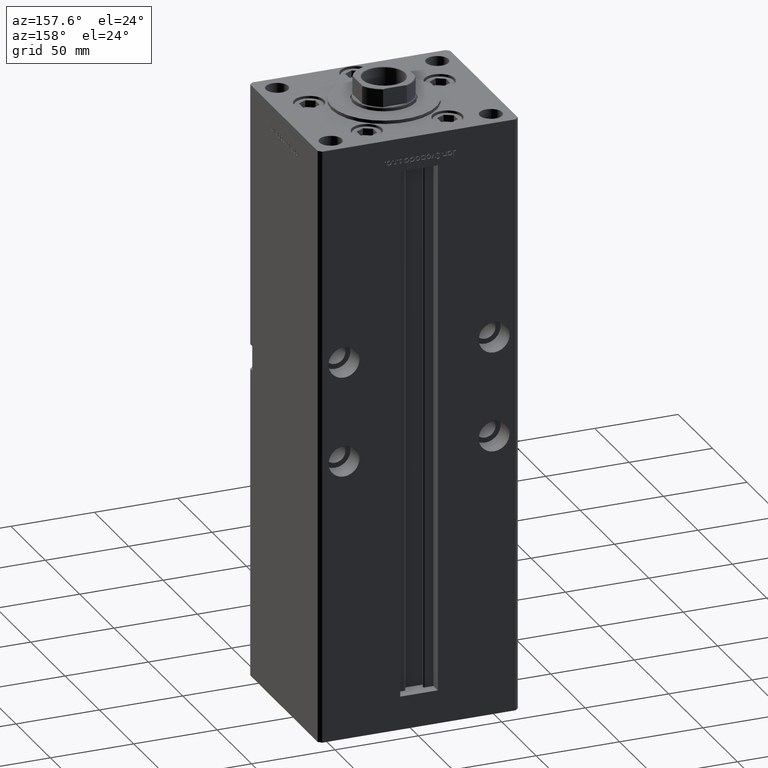
[diagram: clean part render]
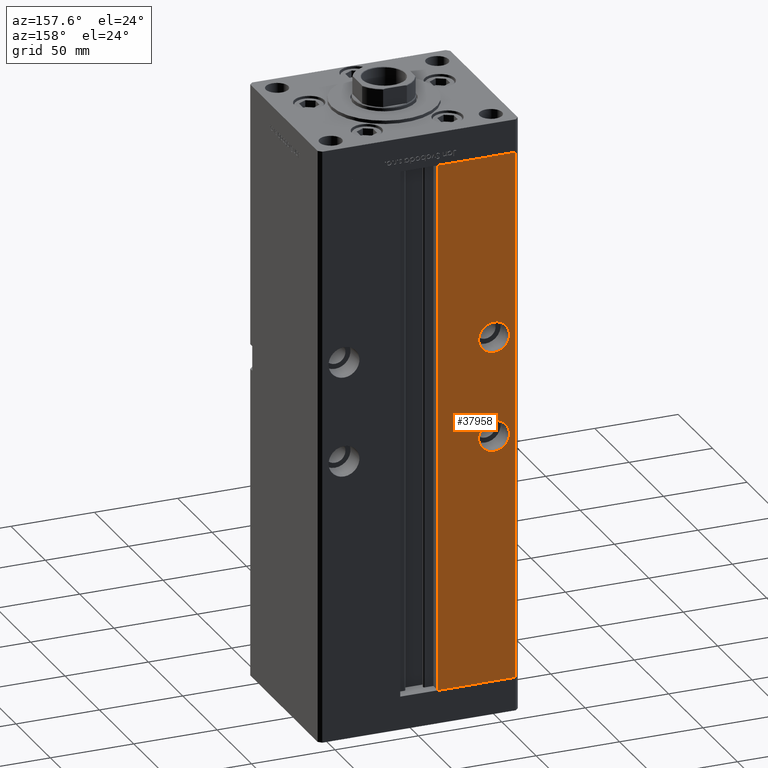
[diagram: same view with one face highlighted and labeled with its STEP entity id]
A machine part, auxiliary view. The second image highlights one B-rep face of the part: STEP entity #37958.
In plain terms, the highlighted planar face has unit normal (0, -1, 0).
Its self-contained STEP definition (entity closure, byte-faithful):
#730 = DIRECTION ( 'NONE',  ( -0.000000000000000000, -0.000000000000000000, 1.000000000000000000 ) ) ;
#1791 = ORIENTED_EDGE ( 'NONE', *, *, #51299, .F. ) ;
#3295 = VECTOR ( 'NONE', #26399, 1000.000000000000000 ) ;
#3877 = CARTESIAN_POINT ( 'NONE',  ( -45.00000000000000000, 51.00000000000000711, 208.5000000000000284 ) ) ;
#4029 = CARTESIAN_POINT ( 'NONE',  ( -45.00000000000000000, 51.00000000000000711, 139.2500000000000000 ) ) ;
#4403 = DIRECTION ( 'NONE',  ( 0.000000000000000000, 1.000000000000000000, -0.000000000000000000 ) ) ;
#5271 = CARTESIAN_POINT ( 'NONE',  ( -11.24999999999999822, 51.00000000000000711, 0.000000000000000000 ) ) ;
#5457 = DIRECTION ( 'NONE',  ( 1.000000000000000000, 0.000000000000000000, 0.000000000000000000 ) ) ;
#5987 = LINE ( 'NONE', #41708, #16168 ) ;
#6859 = DIRECTION ( 'NONE',  ( 0.000000000000000000, 1.000000000000000000, 0.000000000000000000 ) ) ;
#7886 = DIRECTION ( 'NONE',  ( 0.000000000000000000, 0.000000000000000000, -1.000000000000000000 ) ) ;
#7915 = CARTESIAN_POINT ( 'NONE',  ( -11.24999999999999822, 51.00000000000000711, 318.5000000000000000 ) ) ;
#7936 = LINE ( 'NONE', #24611, #17809 ) ;
#9282 = CIRCLE ( 'NONE', #37585, 9.250000000000008882 ) ;
#10916 = CIRCLE ( 'NONE', #11766, 9.250000000000008882 ) ;
#11019 = CARTESIAN_POINT ( 'NONE',  ( -45.00000000000000000, 51.00000000000000711, 148.5000000000000284 ) ) ;
#11054 = EDGE_CURVE ( 'NONE', #22747, #38295, #7936, .T. ) ;
#11766 = AXIS2_PLACEMENT_3D ( 'NONE', #35612, #6859, #47159 ) ;
#12088 = FACE_BOUND ( 'NONE', #27865, .T. ) ;
#12114 = VECTOR ( 'NONE', #730, 1000.000000000000000 ) ;
#12251 = EDGE_CURVE ( 'NONE', #31550, #46218, #9282, .T. ) ;
#12312 = EDGE_CURVE ( 'NONE', #46519, #26069, #5987, .T. ) ;
#14405 = VERTEX_POINT ( 'NONE', #50160 ) ;
#16168 = VECTOR ( 'NONE', #5457, 1000.000000000000000 ) ;
#16481 = DIRECTION ( 'NONE',  ( 0.000000000000000000, 1.000000000000000000, -0.000000000000000000 ) ) ;
#16652 = DIRECTION ( 'NONE',  ( 0.000000000000000000, -0.000000000000000000, -1.000000000000000000 ) ) ;
#17809 = VECTOR ( 'NONE', #36950, 1000.000000000000000 ) ;
#18347 = ORIENTED_EDGE ( 'NONE', *, *, #11054, .T. ) ;
#19563 = CIRCLE ( 'NONE', #42663, 9.250000000000008882 ) ;
#20336 = EDGE_CURVE ( 'NONE', #22747, #26069, #34287, .T. ) ;
#20562 = EDGE_CURVE ( 'NONE', #46218, #31550, #28427, .T. ) ;
#20714 = AXIS2_PLACEMENT_3D ( 'NONE', #41724, #4403, #21051 ) ;
#21051 = DIRECTION ( 'NONE',  ( 0.000000000000000000, 0.000000000000000000, -1.000000000000000000 ) ) ;
#22747 = VERTEX_POINT ( 'NONE', #29909 ) ;
#23167 = ORIENTED_EDGE ( 'NONE', *, *, #20336, .F. ) ;
#23678 = EDGE_LOOP ( 'NONE', ( #29090, #23167, #18347, #1791 ) ) ;
#24258 = CARTESIAN_POINT ( 'NONE',  ( -57.99999999999999289, 51.00000000000000711, 318.5000000000000000 ) ) ;
#24555 = EDGE_CURVE ( 'NONE', #14405, #44257, #19563, .T. ) ;
#24611 = CARTESIAN_POINT ( 'NONE',  ( -11.24999999999999822, 51.00000000000000711, 0.000000000000000000 ) ) ;
#24882 = ORIENTED_EDGE ( 'NONE', *, *, #20562, .F. ) ;
#26069 = VERTEX_POINT ( 'NONE', #7915 ) ;
#26399 = DIRECTION ( 'NONE',  ( -0.000000000000000000, -0.000000000000000000, -1.000000000000000000 ) ) ;
#26956 = CARTESIAN_POINT ( 'NONE',  ( -45.00000000000000000, 51.00000000000000711, 199.2500000000000000 ) ) ;
#27200 = LINE ( 'NONE', #43584, #3295 ) ;
#27694 = DIRECTION ( 'NONE',  ( 0.000000000000000000, 1.000000000000000000, 0.000000000000000000 ) ) ;
#27865 = EDGE_LOOP ( 'NONE', ( #24882, #32922 ) ) ;
#28427 = CIRCLE ( 'NONE', #20714, 9.250000000000008882 ) ;
#29090 = ORIENTED_EDGE ( 'NONE', *, *, #12312, .T. ) ;
#29277 = PLANE ( 'NONE',  #32918 ) ;
#29909 = CARTESIAN_POINT ( 'NONE',  ( -11.24999999999999822, 51.00000000000000711, 0.000000000000000000 ) ) ;
#31550 = VERTEX_POINT ( 'NONE', #26956 ) ;
#32918 = AXIS2_PLACEMENT_3D ( 'NONE', #37598, #46197, #16652 ) ;
#32922 = ORIENTED_EDGE ( 'NONE', *, *, #12251, .F. ) ;
#33053 = FACE_OUTER_BOUND ( 'NONE', #23678, .T. ) ;
#34287 = LINE ( 'NONE', #5271, #12114 ) ;
#35612 = CARTESIAN_POINT ( 'NONE',  ( -45.00000000000000000, 51.00000000000000711, 148.5000000000000284 ) ) ;
#35746 = DIRECTION ( 'NONE',  ( 0.000000000000000000, 0.000000000000000000, 1.000000000000000000 ) ) ;
#36143 = CARTESIAN_POINT ( 'NONE',  ( -45.00000000000000000, 51.00000000000000711, 217.7500000000000284 ) ) ;
#36950 = DIRECTION ( 'NONE',  ( -1.000000000000000000, 0.000000000000000000, 0.000000000000000000 ) ) ;
#37585 = AXIS2_PLACEMENT_3D ( 'NONE', #3877, #16481, #7886 ) ;
#37598 = CARTESIAN_POINT ( 'NONE',  ( -11.24999999999999822, 51.00000000000000711, 318.5000000000000000 ) ) ;
#37859 = FACE_BOUND ( 'NONE', #48898, .T. ) ;
#37958 = ADVANCED_FACE ( 'NONE', ( #12088, #37859, #33053 ), #29277, .F. ) ;
#38295 = VERTEX_POINT ( 'NONE', #39991 ) ;
#39991 = CARTESIAN_POINT ( 'NONE',  ( -57.99999999999999289, 51.00000000000000711, 0.000000000000000000 ) ) ;
#40219 = ORIENTED_EDGE ( 'NONE', *, *, #49171, .F. ) ;
#41708 = CARTESIAN_POINT ( 'NONE',  ( -11.24999999999999822, 51.00000000000000711, 318.5000000000000000 ) ) ;
#41724 = CARTESIAN_POINT ( 'NONE',  ( -45.00000000000000000, 51.00000000000000711, 208.5000000000000284 ) ) ;
#42663 = AXIS2_PLACEMENT_3D ( 'NONE', #11019, #27694, #35746 ) ;
#43584 = CARTESIAN_POINT ( 'NONE',  ( -57.99999999999999289, 51.00000000000000711, 318.5000000000000000 ) ) ;
#44257 = VERTEX_POINT ( 'NONE', #4029 ) ;
#46197 = DIRECTION ( 'NONE',  ( 0.000000000000000000, -1.000000000000000000, 0.000000000000000000 ) ) ;
#46218 = VERTEX_POINT ( 'NONE', #36143 ) ;
#46341 = ORIENTED_EDGE ( 'NONE', *, *, #24555, .F. ) ;
#46519 = VERTEX_POINT ( 'NONE', #24258 ) ;
#47159 = DIRECTION ( 'NONE',  ( 0.000000000000000000, 0.000000000000000000, 1.000000000000000000 ) ) ;
#48898 = EDGE_LOOP ( 'NONE', ( #46341, #40219 ) ) ;
#49171 = EDGE_CURVE ( 'NONE', #44257, #14405, #10916, .T. ) ;
#50160 = CARTESIAN_POINT ( 'NONE',  ( -45.00000000000000000, 51.00000000000000711, 157.7500000000000284 ) ) ;
#51299 = EDGE_CURVE ( 'NONE', #46519, #38295, #27200, .T. ) ;